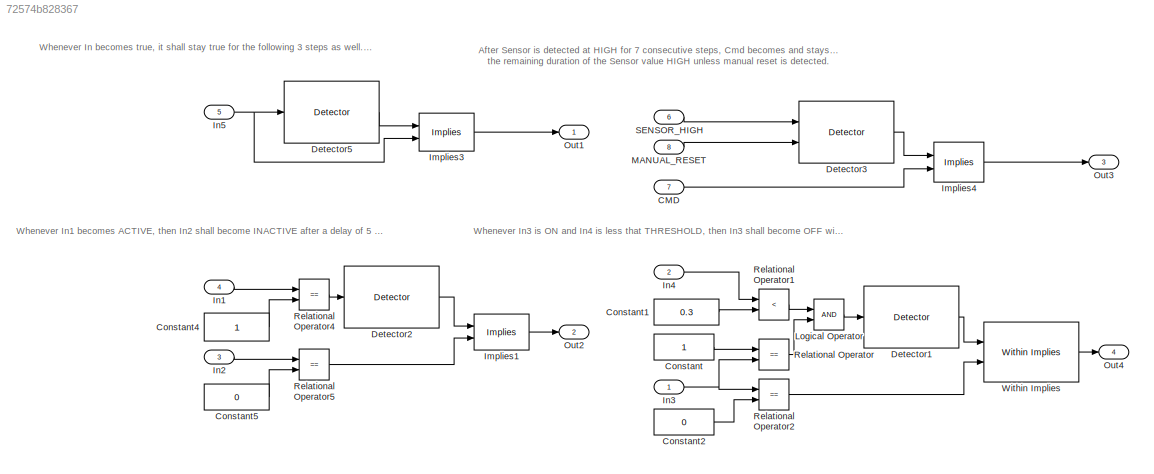
MODEL slx_72574b828367
KIND model
CONFIG AbsTol = auto
CONFIG EnableMultiTasking = off
CONFIG FixedStep = 0.200000
CONFIG MaxStep = auto
CONFIG MinStep = auto
CONFIG RelTol = 1e-3
CONFIG SampleTimeConstraint = Unconstrained
CONFIG Solver = ode3
CONFIG SolverName = ode3
CONFIG StartTime = 0.0
CONFIG StopTime = 10.0
BLOCK [Inport] CMD
  IconDisplay = Port number
  Port = 7
BLOCK [Constant] Constant
BLOCK [Constant] Constant1
  Value = 0.3
BLOCK [Constant] Constant2
  Value = 0
BLOCK [Constant] Constant4
BLOCK [Constant] Constant5
  Value = 0
BLOCK [Reference] Detector1  REF=sldvlib/Temporal Operators/Detector
  Ports = [1, 1]
  SourceBlock = sldvlib/Temporal Operators/Detector
  SourceProductBaseCode = DV
  SourceProductName = Simulink Design Verifier
  SourceType = Detector
BLOCK [Reference] Detector2  REF=sldvlib/Temporal Operators/Detector
  Ports = [1, 1]
  SourceBlock = sldvlib/Temporal Operators/Detector
  SourceProductBaseCode = DV
  SourceProductName = Simulink Design Verifier
  SourceType = Detector
BLOCK [Reference] Detector3  REF=sldvlib/Temporal Operators/Detector
  Ports = [2, 1]
  SourceBlock = sldvlib/Temporal Operators/Detector
  SourceProductBaseCode = DV
  SourceProductName = Simulink Design Verifier
  SourceType = Detector
BLOCK [Reference] Detector5  REF=sldvlib/Temporal Operators/Detector
  Ports = [1, 1]
  SourceBlock = sldvlib/Temporal Operators/Detector
  SourceProductBaseCode = DV
  SourceProductName = Simulink Design Verifier
  SourceType = Detector
BLOCK [Reference] Implies1  REF=sldvlib/Verification Utilities/Implies
  Ports = [2, 1]
  SourceBlock = sldvlib/Verification Utilities/Implies
  SourceProductBaseCode = DV
  SourceProductName = Simulink Design Verifier
  SourceType = Design Verifier Implies
BLOCK [Reference] Implies3  REF=sldvlib/Verification Utilities/Implies
  Ports = [2, 1]
  SourceBlock = sldvlib/Verification Utilities/Implies
  SourceProductBaseCode = DV
  SourceProductName = Simulink Design Verifier
  SourceType = Design Verifier Implies
BLOCK [Reference] Implies4  REF=sldvlib/Verification Utilities/Implies
  Ports = [2, 1]
  SourceBlock = sldvlib/Verification Utilities/Implies
  SourceProductBaseCode = DV
  SourceProductName = Simulink Design Verifier
  SourceType = Design Verifier Implies
BLOCK [Inport] In1
  IconDisplay = Port number
  Port = 4
BLOCK [Inport] In2
  IconDisplay = Port number
  Port = 3
BLOCK [Inport] In3
  IconDisplay = Port number
  OutDataTypeStr = boolean
BLOCK [Inport] In4
  IconDisplay = Port number
  Port = 2
BLOCK [Inport] In5
  IconDisplay = Port number
  OutDataTypeStr = boolean
  Port = 5
BLOCK [Logic] Logical Operator
  AllPortsSameDT = off
  OutDataTypeStr = boolean
  Ports = [2, 1]
BLOCK [Inport] MANUAL_RESET
  IconDisplay = Port number
  OutDataTypeStr = boolean
  Port = 8
BLOCK [Outport] Out1
  IconDisplay = Port number
BLOCK [Outport] Out2
  IconDisplay = Port number
  Port = 2
BLOCK [Outport] Out3
  IconDisplay = Port number
  Port = 3
BLOCK [Outport] Out4
  IconDisplay = Port number
  Port = 4
BLOCK [RelationalOperator] Relational Operator
  InputSameDT = off
  Operator = ==
  OutDataTypeStr = boolean
  Ports = [2, 1]
BLOCK [RelationalOperator] Relational Operator1
  InputSameDT = off
  Operator = <
  OutDataTypeStr = boolean
  Ports = [2, 1]
BLOCK [RelationalOperator] Relational Operator2
  InputSameDT = off
  Operator = ==
  OutDataTypeStr = boolean
  Ports = [2, 1]
BLOCK [RelationalOperator] Relational Operator4
  InputSameDT = off
  Operator = ==
  OutDataTypeStr = boolean
  Ports = [2, 1]
BLOCK [RelationalOperator] Relational Operator5
  InputSameDT = off
  Operator = ==
  OutDataTypeStr = boolean
  Ports = [2, 1]
BLOCK [Inport] SENSOR_HIGH
  IconDisplay = Port number
  Port = 6
BLOCK [Reference] Within Implies  REF=sldvlib/Temporal Operators/Within Implies
  Ports = [2, 1]
  SourceBlock = sldvlib/Temporal Operators/Within Implies
  SourceProductBaseCode = DV
  SourceProductName = Simulink Design Verifier
  SourceType = Within Implies
ANNOTATION (root): After Sensor is detected at HIGH for 7 consecutive steps, Cmd becomes and stays true for the remaining duration of the Sensor value HIGH unless manual reset is detected.
ANNOTATION (root): Whenever In becomes true, it shall stay true for the following 3 steps as well.
ANNOTATION (root): Whenever In1 becomes ACTIVE, then In2 shall become INACTIVE after a delay of 5 steps.
ANNOTATION (root): Whenever In3 is ON and In4 is less that THRESHOLD, then In3 shall become OFF within 5 steps.
LINE CMD:1 -> Implies4:2
LINE Constant1:1 -> Relational Operator1:2
LINE Constant2:1 -> Relational Operator2:2
LINE Constant4:1 -> Relational Operator4:2
LINE Constant5:1 -> Relational Operator5:2
LINE Constant:1 -> Relational Operator:1
LINE Detector1:1 -> Within Implies:1
LINE Detector2:1 -> Implies1:1
LINE Detector3:1 -> Implies4:1
LINE Detector5:1 -> Implies3:1
LINE Implies1:1 -> Out2:1
LINE Implies3:1 -> Out1:1
LINE Implies4:1 -> Out3:1
LINE In1:1 -> Relational Operator4:1
LINE In2:1 -> Relational Operator5:1
NET In3:1 -> Relational Operator2:1, Relational Operator:2
LINE In4:1 -> Relational Operator1:1
NET In5:1 -> Detector5:1, Implies3:2
LINE Logical Operator:1 -> Detector1:1
LINE MANUAL_RESET:1 -> Detector3:2
LINE Relational Operator1:1 -> Logical Operator:1
LINE Relational Operator2:1 -> Within Implies:2
LINE Relational Operator4:1 -> Detector2:1
LINE Relational Operator5:1 -> Implies1:2
LINE Relational Operator:1 -> Logical Operator:2
LINE SENSOR_HIGH:1 -> Detector3:1
LINE Within Implies:1 -> Out4:1
note: NET lines group one-source signal fan-out (src -> all destinations, sorted); 1:1 wires keep LINE
